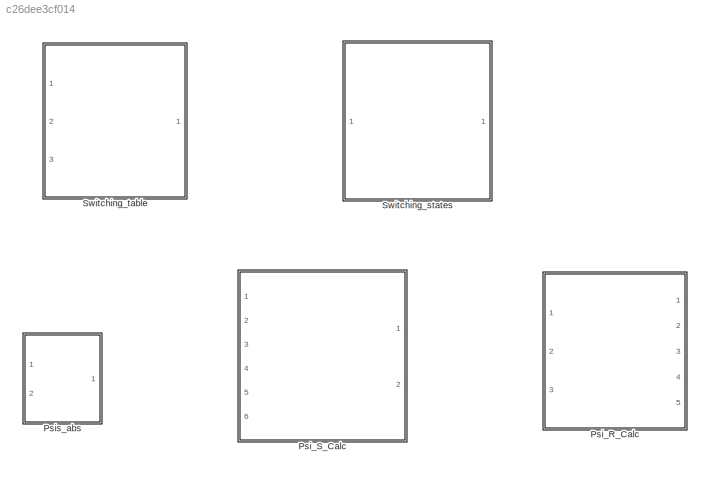
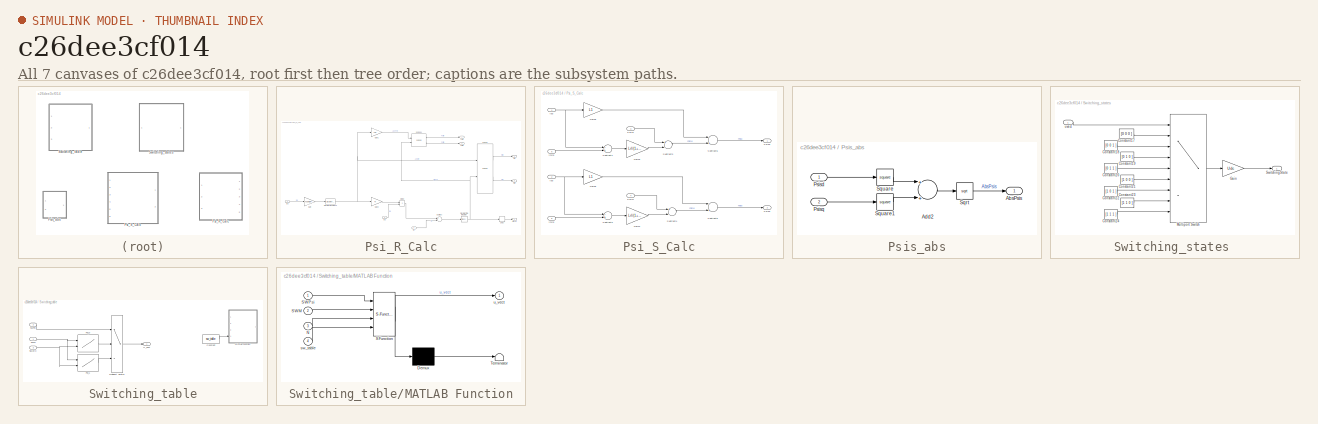
[diagram: thumbnail index - all 7 canvases of the model, root first then tree order]
MODEL slx_c26dee3cf014
KIND library
CONFIG AbsTol = auto
CONFIG EnableMultiTasking = off
CONFIG FixedStep = auto
CONFIG MaxStep = auto
CONFIG MinStep = auto
CONFIG RelTol = 1e-3
CONFIG SampleTimeConstraint = Unconstrained
CONFIG Solver = VariableStepAuto
CONFIG SolverName = VariableStepAuto
CONFIG StartTime = 0.0
CONFIG StopTime = 10.0
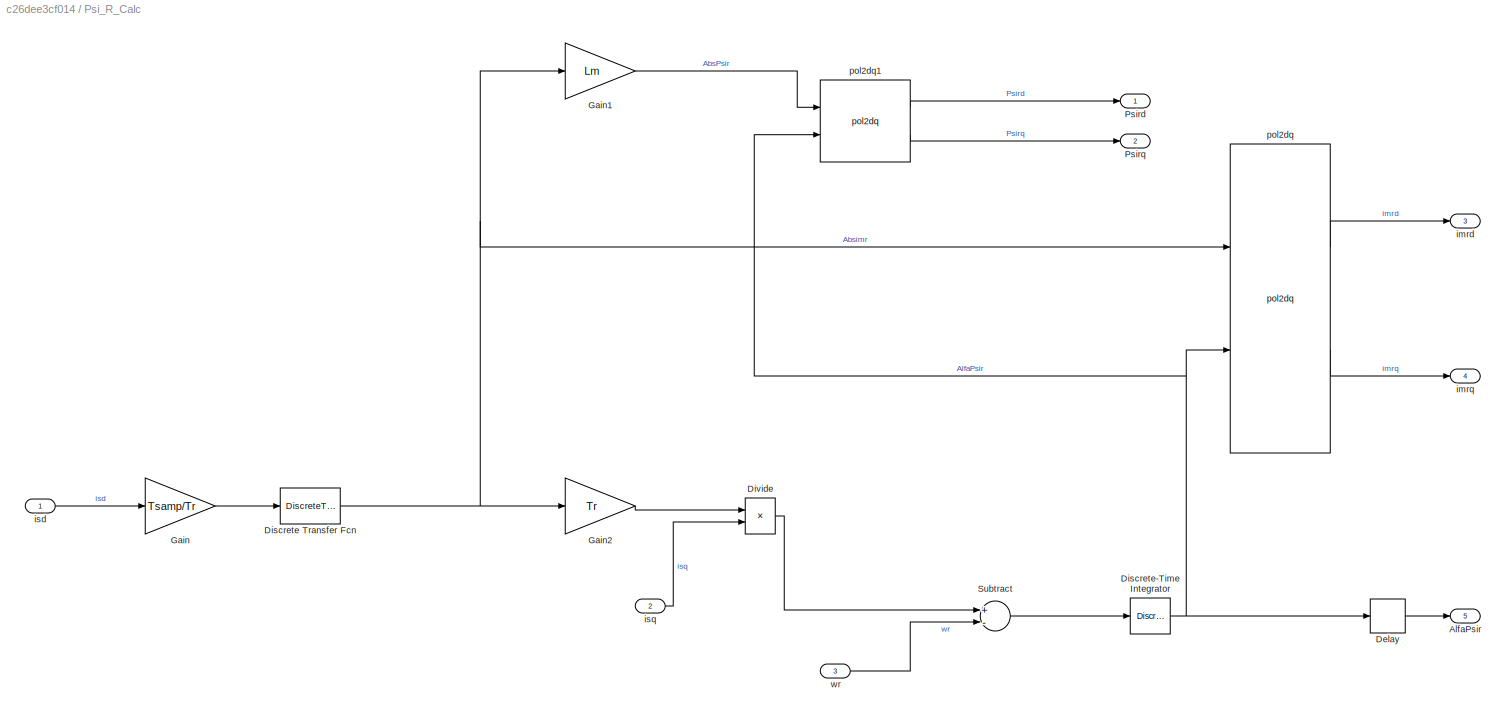
BLOCK [SubSystem] Psi_R_Calc
  Ports = [3, 5]
  RequestExecContextInheritance = off
  Variant = off
BLOCK [Outport] Psi_R_Calc/AlfaPsir
  IconDisplay = Port number
  Port = 5
BLOCK [Delay] Psi_R_Calc/Delay
  DelayLength = 1
  InputPortMap = u0
  Ports = [1, 1]
BLOCK [DiscreteTransferFcn] Psi_R_Calc/Discrete Transfer Fcn
  Denominator = [1 -1]
  InputPortMap = u0
  Ports = [1, 1]
BLOCK [DiscreteIntegrator] Psi_R_Calc/Discrete-Time Integrator
  ICPrevOutput = DiscIntNeverNeededParam
  ICPrevScaledInput = DiscIntNeverNeededParam
  InitialConditionSetting = State (most efficient)
  IntegratorMethod = Accumulation: Backward Euler
  Ports = [1, 1]
  SampleTime = -1
BLOCK [Product] Psi_R_Calc/Divide
  InputSameDT = off
  Inputs = /*
  OutDataTypeStr = Inherit: Inherit via internal rule
  Ports = [2, 1]
  RndMeth = Floor
  SaturateOnIntegerOverflow = off
BLOCK [Gain] Psi_R_Calc/Gain
  Gain = Tsamp/Tr
  OutDataTypeStr = Inherit: Inherit via internal rule
  ParamDataTypeStr = Inherit: Inherit via internal rule
  SaturateOnIntegerOverflow = off
BLOCK [Gain] Psi_R_Calc/Gain1
  Gain = Lm
  OutDataTypeStr = Inherit: Inherit via internal rule
  ParamDataTypeStr = Inherit: Inherit via internal rule
  SaturateOnIntegerOverflow = off
BLOCK [Gain] Psi_R_Calc/Gain2
  Gain = Tr
  OutDataTypeStr = Inherit: Inherit via internal rule
  ParamDataTypeStr = Inherit: Inherit via internal rule
  SaturateOnIntegerOverflow = off
BLOCK [Outport] Psi_R_Calc/Psird
  IconDisplay = Port number
BLOCK [Outport] Psi_R_Calc/Psirq
  IconDisplay = Port number
  Port = 2
BLOCK [Sum] Psi_R_Calc/Subtract
  InputSameDT = off
  Inputs = +-
  OutDataTypeStr = Inherit: Inherit via internal rule
  Ports = [2, 1]
  SaturateOnIntegerOverflow = off
BLOCK [Outport] Psi_R_Calc/imrd
  IconDisplay = Port number
  Port = 3
BLOCK [Outport] Psi_R_Calc/imrq
  IconDisplay = Port number
  Port = 4
BLOCK [Inport] Psi_R_Calc/isd
  IconDisplay = Port number
BLOCK [Inport] Psi_R_Calc/isq
  IconDisplay = Port number
  Port = 2
BLOCK [Reference] Psi_R_Calc/pol2dq  REF=coordinate_transform_lib/pol2dq  (lib defined in slx_e95137733bb9)
  Ports = [2, 2]
  SourceBlock = coordinate_transform_lib/pol2dq
  SourceType = SubSystem
BLOCK [Reference] Psi_R_Calc/pol2dq1  REF=coordinate_transform_lib/pol2dq  (lib defined in slx_e95137733bb9)
  Ports = [2, 2]
  SourceBlock = coordinate_transform_lib/pol2dq
  SourceType = SubSystem
BLOCK [Inport] Psi_R_Calc/wr
  IconDisplay = Port number
  Port = 3
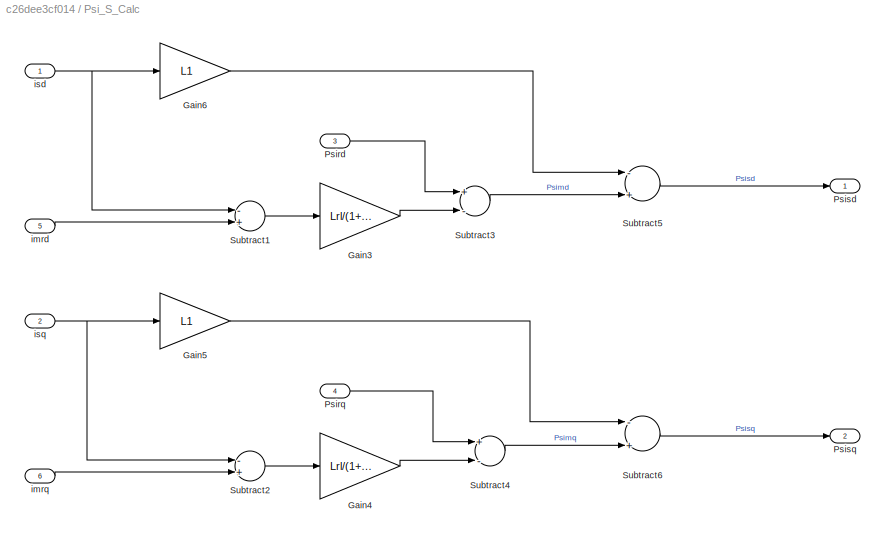
BLOCK [SubSystem] Psi_S_Calc
  Ports = [6, 2]
  RequestExecContextInheritance = off
  Variant = off
BLOCK [Gain] Psi_S_Calc/Gain3
  Gain = Lrl/(1+Lrl/Lm)
  OutDataTypeStr = Inherit: Inherit via internal rule
  ParamDataTypeStr = Inherit: Inherit via internal rule
  SaturateOnIntegerOverflow = off
BLOCK [Gain] Psi_S_Calc/Gain4
  Gain = Lrl/(1+Lrl/Lm)
  OutDataTypeStr = Inherit: Inherit via internal rule
  ParamDataTypeStr = Inherit: Inherit via internal rule
  SaturateOnIntegerOverflow = off
BLOCK [Gain] Psi_S_Calc/Gain5
  Gain = L1
  OutDataTypeStr = Inherit: Inherit via internal rule
  ParamDataTypeStr = Inherit: Inherit via internal rule
  SaturateOnIntegerOverflow = off
BLOCK [Gain] Psi_S_Calc/Gain6
  Gain = L1
  OutDataTypeStr = Inherit: Inherit via internal rule
  ParamDataTypeStr = Inherit: Inherit via internal rule
  SaturateOnIntegerOverflow = off
BLOCK [Inport] Psi_S_Calc/Psird
  IconDisplay = Port number
  Port = 3
BLOCK [Inport] Psi_S_Calc/Psirq
  IconDisplay = Port number
  Port = 4
BLOCK [Outport] Psi_S_Calc/Psisd
  IconDisplay = Port number
BLOCK [Outport] Psi_S_Calc/Psisq
  IconDisplay = Port number
  Port = 2
BLOCK [Sum] Psi_S_Calc/Subtract1
  InputSameDT = off
  Inputs = -+
  OutDataTypeStr = Inherit: Inherit via internal rule
  Ports = [2, 1]
  SaturateOnIntegerOverflow = off
BLOCK [Sum] Psi_S_Calc/Subtract2
  InputSameDT = off
  Inputs = -+
  OutDataTypeStr = Inherit: Inherit via internal rule
  Ports = [2, 1]
  SaturateOnIntegerOverflow = off
BLOCK [Sum] Psi_S_Calc/Subtract3
  InputSameDT = off
  Inputs = +-
  OutDataTypeStr = Inherit: Inherit via internal rule
  Ports = [2, 1]
  SaturateOnIntegerOverflow = off
BLOCK [Sum] Psi_S_Calc/Subtract4
  InputSameDT = off
  Inputs = +-
  OutDataTypeStr = Inherit: Inherit via internal rule
  Ports = [2, 1]
  SaturateOnIntegerOverflow = off
BLOCK [Sum] Psi_S_Calc/Subtract5
  InputSameDT = off
  Inputs = -+
  OutDataTypeStr = Inherit: Inherit via internal rule
  Ports = [2, 1]
  SaturateOnIntegerOverflow = off
BLOCK [Sum] Psi_S_Calc/Subtract6
  InputSameDT = off
  Inputs = -+
  OutDataTypeStr = Inherit: Inherit via internal rule
  Ports = [2, 1]
  SaturateOnIntegerOverflow = off
BLOCK [Inport] Psi_S_Calc/imrd
  IconDisplay = Port number
  Port = 5
BLOCK [Inport] Psi_S_Calc/imrq
  IconDisplay = Port number
  Port = 6
BLOCK [Inport] Psi_S_Calc/isd
  IconDisplay = Port number
BLOCK [Inport] Psi_S_Calc/isq
  IconDisplay = Port number
  Port = 2
BLOCK [SubSystem] Psis_abs
  Ports = [2, 1]
  RequestExecContextInheritance = off
  Variant = off
BLOCK [Outport] Psis_abs/AbsPsis
  IconDisplay = Port number
BLOCK [Sum] Psis_abs/Add2
  InputSameDT = off
  OutDataTypeStr = Inherit: Inherit via internal rule
  Ports = [2, 1]
  SaturateOnIntegerOverflow = off
BLOCK [Inport] Psis_abs/Psisd
  IconDisplay = Port number
BLOCK [Inport] Psis_abs/Psisq
  IconDisplay = Port number
  Port = 2
BLOCK [Sqrt] Psis_abs/Sqrt
BLOCK [Math] Psis_abs/Square
  Operator = square
  Ports = [1, 1]
  RndMeth = Zero
BLOCK [Math] Psis_abs/Square1
  Operator = square
  Ports = [1, 1]
  RndMeth = Zero
BLOCK [SubSystem] Switching_states 
  Ports = [1, 1]
  RequestExecContextInheritance = off
  Variant = off
BLOCK [Constant] Switching_states /Constant17
  Value = [0 0 0 ]
BLOCK [Constant] Switching_states /Constant18
  Value = [0 0 1 ]
BLOCK [Constant] Switching_states /Constant19
  Value = [0 1 0 ]
BLOCK [Constant] Switching_states /Constant20
  Value = [0 1 1 ]
BLOCK [Constant] Switching_states /Constant21
  Value = [1 0 0 ]
BLOCK [Constant] Switching_states /Constant22
  Value = [1 0 1 ]
BLOCK [Constant] Switching_states /Constant23
  Value = [1 1 0 ]
BLOCK [Constant] Switching_states /Constant24
  Value = [1 1 1 ]
BLOCK [Gain] Switching_states /Gain
  Gain = Udc
  OutDataTypeStr = Inherit: Inherit via internal rule
  ParamDataTypeStr = Inherit: Inherit via internal rule
  SaturateOnIntegerOverflow = off
BLOCK [MultiPortSwitch] Switching_states /Multiport Switch
  DataPortOrder = Zero-based contiguous
  InputSameDT = off
  Inputs = 8
  Ports = [9, 1]
  SaturateOnIntegerOverflow = off
BLOCK [Outport] Switching_states /SwitchingState
  IconDisplay = Port number
BLOCK [Inport] Switching_states /uvect
  IconDisplay = Port number
BLOCK [SubSystem] Switching_table
  Ports = [3, 1]
  RequestExecContextInheritance = off
  Variant = off
BLOCK [Constant] Switching_table/Constant
  Commented = on
  Value = sw_table
BLOCK [SubSystem] Switching_table/MATLAB Function
  Commented = on
  ErrorFcn = Stateflow.Translate.translate
  PermitHierarchicalResolution = ExplicitOnly
  Ports = [4, 1]
  RequestExecContextInheritance = off
  SFBlockType = MATLAB Function
  TreatAsAtomicUnit = on
  Variant = off
BLOCK [Demux] Switching_table/MATLAB Function/ Demux 
  Outputs = 1
  Ports = [1, 1]
BLOCK [S-Function] Switching_table/MATLAB Function/ SFunction 
  EnableBusSupport = off
  FunctionName = sf_sfun
  PortCounts = [4 2]
  Ports = [4, 2]
  SFcnIsStateOwnerBlock = off
  SFunctionDeploymentMode = off
  Tag = Stateflow S-Function misc_lib 2
BLOCK [Terminator] Switching_table/MATLAB Function/ Terminator 
BLOCK [Inport] Switching_table/MATLAB Function/N
  IconDisplay = Port number
  Port = 3
BLOCK [Inport] Switching_table/MATLAB Function/SWM
  IconDisplay = Port number
  Port = 2
BLOCK [Inport] Switching_table/MATLAB Function/SWPsi
  IconDisplay = Port number
BLOCK [Inport] Switching_table/MATLAB Function/sw_table
  IconDisplay = Port number
  Port = 4
BLOCK [Outport] Switching_table/MATLAB Function/u_vect
  IconDisplay = Port number
BLOCK [MultiPortSwitch] Switching_table/Multiport Switch
  DataPortOrder = Zero-based contiguous
  InputSameDT = off
  Inputs = 2
  Ports = [3, 1]
  SaturateOnIntegerOverflow = off
BLOCK [Lookup2D] Switching_table/Psi_0
  ColumnIndex = [1;2;3;4;5;6]
  InputSameDT = off
  RowIndex = [1;2;3]
  Table = [2 3 4 5 6 1;0 7 0 7 0 7;6 1 2 3 4 5]
BLOCK [Lookup2D] Switching_table/Psi_1
  ColumnIndex = [1;2;3;4;5;6]
  InputSameDT = off
  RowIndex = [1;2;3]
  Table = [3 4 5 6 1 2;7 0 7 0 7 0;5 6 1 2 3 4]
BLOCK [Inport] Switching_table/SWARC
  IconDisplay = Port number
  Port = 3
BLOCK [Inport] Switching_table/SWM
  IconDisplay = Port number
BLOCK [Inport] Switching_table/SWPsi
  IconDisplay = Port number
  Port = 2
BLOCK [Outport] Switching_table/U_vect
  IconDisplay = Port number
LINE Psi_R_Calc/Delay:1 -> Psi_R_Calc/AlfaPsir:1
NET Psi_R_Calc/Discrete Transfer Fcn:1 -> Psi_R_Calc/Gain1:1, Psi_R_Calc/Gain2:1, Psi_R_Calc/pol2dq:1
NET Psi_R_Calc/Discrete-Time Integrator:1 -> Psi_R_Calc/Delay:1, Psi_R_Calc/pol2dq1:2, Psi_R_Calc/pol2dq:2
LINE Psi_R_Calc/Divide:1 -> Psi_R_Calc/Subtract:1
LINE Psi_R_Calc/Gain1:1 -> Psi_R_Calc/pol2dq1:1
LINE Psi_R_Calc/Gain2:1 -> Psi_R_Calc/Divide:1
LINE Psi_R_Calc/Gain:1 -> Psi_R_Calc/Discrete Transfer Fcn:1
LINE Psi_R_Calc/Subtract:1 -> Psi_R_Calc/Discrete-Time Integrator:1
LINE Psi_R_Calc/isd:1 -> Psi_R_Calc/Gain:1
LINE Psi_R_Calc/isq:1 -> Psi_R_Calc/Divide:2
LINE Psi_R_Calc/pol2dq1:1 -> Psi_R_Calc/Psird:1
LINE Psi_R_Calc/pol2dq1:2 -> Psi_R_Calc/Psirq:1
LINE Psi_R_Calc/pol2dq:1 -> Psi_R_Calc/imrd:1
LINE Psi_R_Calc/pol2dq:2 -> Psi_R_Calc/imrq:1
LINE Psi_R_Calc/wr:1 -> Psi_R_Calc/Subtract:2
LINE Psi_S_Calc/Gain3:1 -> Psi_S_Calc/Subtract3:2
LINE Psi_S_Calc/Gain4:1 -> Psi_S_Calc/Subtract4:2
LINE Psi_S_Calc/Gain5:1 -> Psi_S_Calc/Subtract6:1
LINE Psi_S_Calc/Gain6:1 -> Psi_S_Calc/Subtract5:1
LINE Psi_S_Calc/Psird:1 -> Psi_S_Calc/Subtract3:1
LINE Psi_S_Calc/Psirq:1 -> Psi_S_Calc/Subtract4:1
LINE Psi_S_Calc/Subtract1:1 -> Psi_S_Calc/Gain3:1
LINE Psi_S_Calc/Subtract2:1 -> Psi_S_Calc/Gain4:1
LINE Psi_S_Calc/Subtract3:1 -> Psi_S_Calc/Subtract5:2
LINE Psi_S_Calc/Subtract4:1 -> Psi_S_Calc/Subtract6:2
LINE Psi_S_Calc/Subtract5:1 -> Psi_S_Calc/Psisd:1
LINE Psi_S_Calc/Subtract6:1 -> Psi_S_Calc/Psisq:1
LINE Psi_S_Calc/imrd:1 -> Psi_S_Calc/Subtract1:2
LINE Psi_S_Calc/imrq:1 -> Psi_S_Calc/Subtract2:2
NET Psi_S_Calc/isd:1 -> Psi_S_Calc/Gain6:1, Psi_S_Calc/Subtract1:1
NET Psi_S_Calc/isq:1 -> Psi_S_Calc/Gain5:1, Psi_S_Calc/Subtract2:1
LINE Psis_abs/Add2:1 -> Psis_abs/Sqrt:1
LINE Psis_abs/Psisd:1 -> Psis_abs/Square:1
LINE Psis_abs/Psisq:1 -> Psis_abs/Square1:1
LINE Psis_abs/Sqrt:1 -> Psis_abs/AbsPsis:1
LINE Psis_abs/Square1:1 -> Psis_abs/Add2:2
LINE Psis_abs/Square:1 -> Psis_abs/Add2:1
LINE Switching_states /Constant17:1 -> Switching_states /Multiport Switch:2
LINE Switching_states /Constant18:1 -> Switching_states /Multiport Switch:3
LINE Switching_states /Constant19:1 -> Switching_states /Multiport Switch:4
LINE Switching_states /Constant20:1 -> Switching_states /Multiport Switch:5
LINE Switching_states /Constant21:1 -> Switching_states /Multiport Switch:6
LINE Switching_states /Constant22:1 -> Switching_states /Multiport Switch:7
LINE Switching_states /Constant23:1 -> Switching_states /Multiport Switch:8
LINE Switching_states /Constant24:1 -> Switching_states /Multiport Switch:9
LINE Switching_states /Gain:1 -> Switching_states /SwitchingState:1
LINE Switching_states /Multiport Switch:1 -> Switching_states /Gain:1
LINE Switching_states /uvect:1 -> Switching_states /Multiport Switch:1
LINE Switching_table/Constant:1 -> Switching_table/MATLAB Function:4
LINE Switching_table/Multiport Switch:1 -> Switching_table/U_vect:1
LINE Switching_table/Psi_0:1 -> Switching_table/Multiport Switch:2
LINE Switching_table/Psi_1:1 -> Switching_table/Multiport Switch:3
NET Switching_table/SWARC:1 -> Switching_table/Psi_0:2, Switching_table/Psi_1:2
NET Switching_table/SWM:1 -> Switching_table/Psi_0:1, Switching_table/Psi_1:1
LINE Switching_table/SWPsi:1 -> Switching_table/Multiport Switch:1
note: NET lines group one-source signal fan-out (src -> all destinations, sorted); 1:1 wires keep LINE
CHART Switching_table/MATLAB Function states=1 transitions=1
  STATE_LABEL 'eML_blk_kernel()'
  STATE_LABEL 'SCRIPT:\nfunction u_vect = switching_function(SWPsi, SWM, N, sw_table)\n\ndouble temp;\n\nif (SWPsi == 1) && (SWM == 1)\n    temp = sw_table(1,N);\n    elseif (SWPsi == 1) && (SWM == 0)\n        temp = sw_table(2,N);\n        elseif (SWPsi == 1) && (SWM == -1)\n            temp = sw_table(3,N);\n            elseif (SWPsi == 0) && (SWM == 1)\n                temp = sw_table(4,N);\n                elseif (SWPsi ...<+116ch>'
